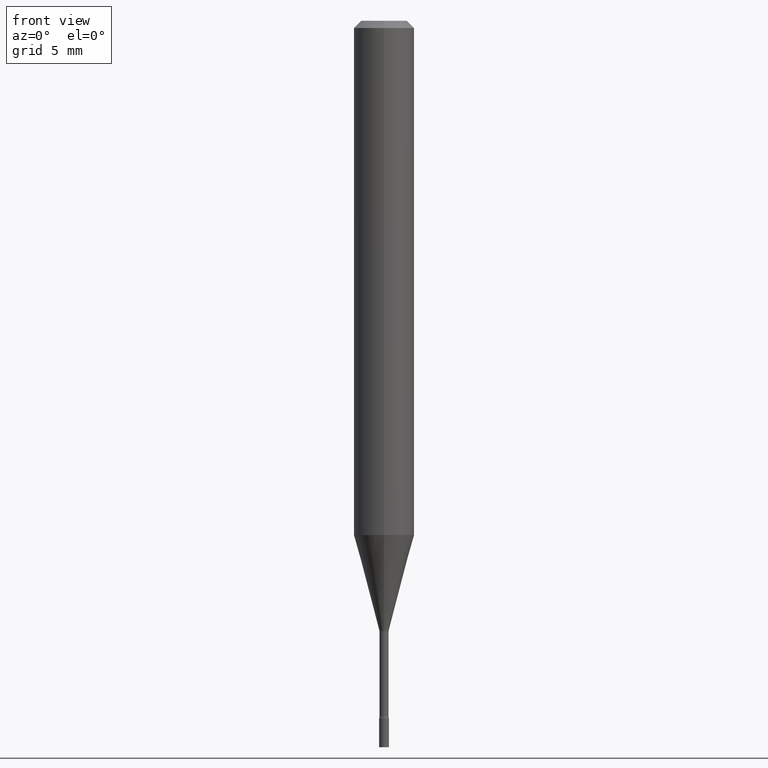
[diagram: clean part render]
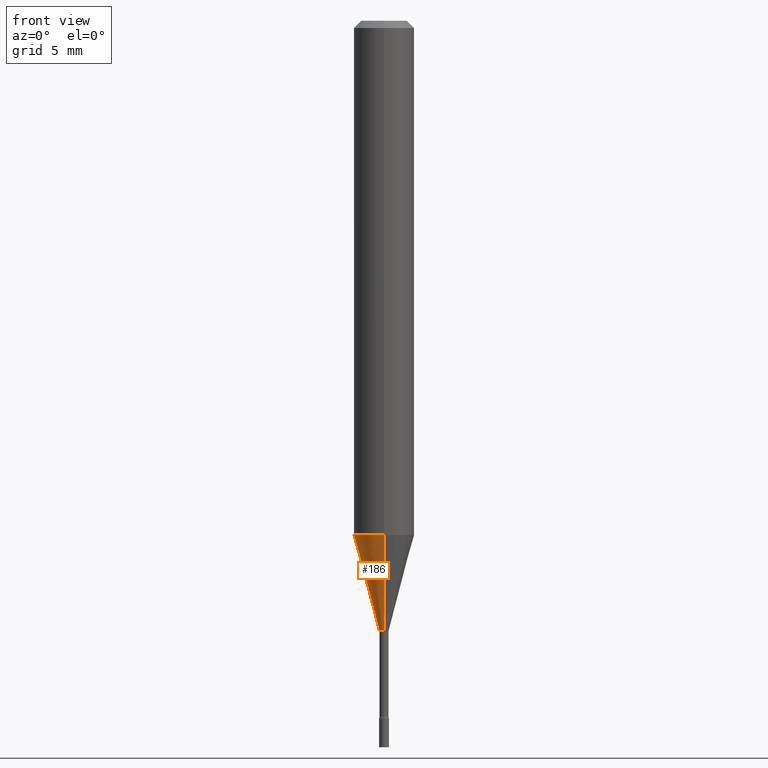
[diagram: same view with one face highlighted and labeled with its STEP entity id]
A machine part, front view. The second image highlights one B-rep face of the part: STEP entity #186.
In plain terms, the highlighted conical surface has half-angle 15 deg.
Its self-contained STEP definition (entity closure, byte-faithful):
#12 = CARTESIAN_POINT ( 'NONE',  ( 4.440892098500884514E-16, 0.06249999999999630157, -1.061828102118093309 ) ) ;
#26 = DIRECTION ( 'NONE',  ( 1.839019923739596765E-15, 0.2588190451025244587, 0.9659258262890673130 ) ) ;
#27 = CIRCLE ( 'NONE', #347, 0.009911112605663982209 ) ;
#34 = DIRECTION ( 'NONE',  ( -2.445530575640527241E-29, 3.491392881467327032E-15, 1.000000000000000000 ) ) ;
#39 = DIRECTION ( 'NONE',  ( -2.445530575640527241E-29, 3.491392881467327032E-15, 1.000000000000000000 ) ) ;
#45 = EDGE_CURVE ( 'NONE', #366, #263, #27, .T. ) ;
#54 = CONICAL_SURFACE ( 'NONE', #274, 0.009911112605663982209, 0.2617993877991497409 ) ;
#67 = CARTESIAN_POINT ( 'NONE',  ( -6.920892941966668740E-17, -0.009911112605668374528, -1.258092501787273276 ) ) ;
#74 = CARTESIAN_POINT ( 'NONE',  ( -6.920892941966668740E-17, -0.009911112605668374528, -1.258092501787273276 ) ) ;
#75 = CARTESIAN_POINT ( 'NONE',  ( 7.042269065257976268E-17, 0.009911112605659589889, -1.258092501787273276 ) ) ;
#76 = ORIENTED_EDGE ( 'NONE', *, *, #268, .T. ) ;
#122 = EDGE_LOOP ( 'NONE', ( #376, #501, #76, #206 ) ) ;
#139 = DIRECTION ( 'NONE',  ( -2.445530575640527241E-29, 3.491392881467327032E-15, 1.000000000000000000 ) ) ;
#165 = VECTOR ( 'NONE', #26, 39.37007874015748143 ) ;
#169 = CARTESIAN_POINT ( 'NONE',  ( 3.076703680104861459E-29, -4.392495204967507173E-15, -1.258092501787273276 ) ) ;
#186 = ADVANCED_FACE ( 'NONE', ( #388 ), #54, .T. ) ;
#206 = ORIENTED_EDGE ( 'NONE', *, *, #317, .F. ) ;
#213 = VERTEX_POINT ( 'NONE', #277 ) ;
#216 = DIRECTION ( 'NONE',  ( -6.982962677686264344E-15, -1.000000000000000000, 0.000000000000000000 ) ) ;
#249 = CARTESIAN_POINT ( 'NONE',  ( 2.596733089804148317E-29, -3.707259077077071931E-15, -1.061828102118093087 ) ) ;
#263 = VERTEX_POINT ( 'NONE', #74 ) ;
#268 = EDGE_CURVE ( 'NONE', #263, #213, #310, .T. ) ;
#271 = EDGE_CURVE ( 'NONE', #366, #461, #428, .T. ) ;
#274 = AXIS2_PLACEMENT_3D ( 'NONE', #504, #34, #511 ) ;
#277 = CARTESIAN_POINT ( 'NONE',  ( -4.364351673553657849E-16, -0.06250000000000371925, -1.061828102118092865 ) ) ;
#305 = CIRCLE ( 'NONE', #404, 0.06250000000000000000 ) ;
#310 = LINE ( 'NONE', #67, #391 ) ;
#317 = EDGE_CURVE ( 'NONE', #461, #213, #305, .T. ) ;
#347 = AXIS2_PLACEMENT_3D ( 'NONE', #169, #139, #216 ) ;
#363 = DIRECTION ( 'NONE',  ( -6.982962677686265922E-15, -1.000000000000000000, 4.370956789862821150E-15 ) ) ;
#366 = VERTEX_POINT ( 'NONE', #488 ) ;
#376 = ORIENTED_EDGE ( 'NONE', *, *, #271, .F. ) ;
#388 = FACE_OUTER_BOUND ( 'NONE', #122, .T. ) ;
#391 = VECTOR ( 'NONE', #474, 39.37007874015748854 ) ;
#404 = AXIS2_PLACEMENT_3D ( 'NONE', #249, #39, #363 ) ;
#428 = LINE ( 'NONE', #75, #165 ) ;
#461 = VERTEX_POINT ( 'NONE', #12 ) ;
#474 = DIRECTION ( 'NONE',  ( -1.807323732225326589E-15, -0.2588190451025176864, 0.9659258262890690894 ) ) ;
#488 = CARTESIAN_POINT ( 'NONE',  ( 2.572559502513342919E-16, 0.009911112605659589889, -1.258092501787273276 ) ) ;
#501 = ORIENTED_EDGE ( 'NONE', *, *, #45, .T. ) ;
#504 = CARTESIAN_POINT ( 'NONE',  ( 3.076703680104861459E-29, -4.392495204967507173E-15, -1.258092501787273276 ) ) ;
#511 = DIRECTION ( 'NONE',  ( -6.982962677686264344E-15, -1.000000000000000000, 0.000000000000000000 ) ) ;